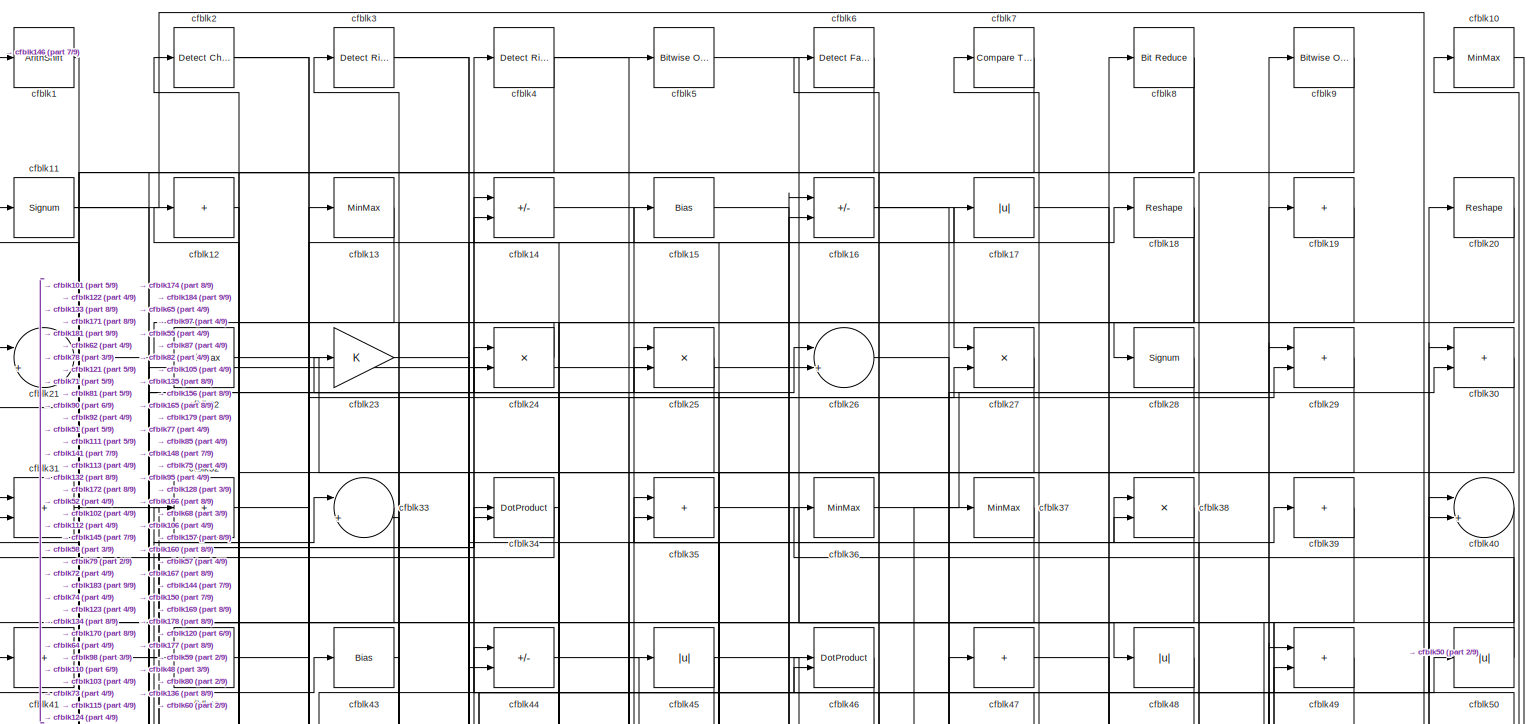
[diagram: root canvas - part 1/9, full width, top band]
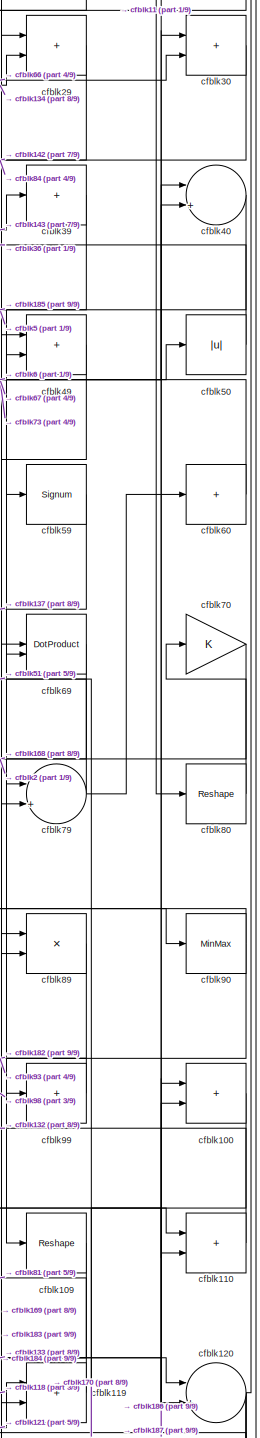
[diagram: root canvas - part 2/9, middle right region]
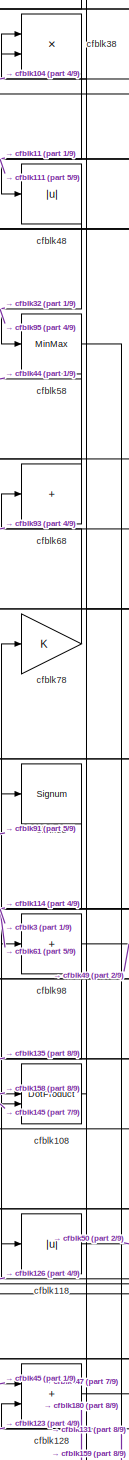
[diagram: root canvas - part 3/9, middle right region]
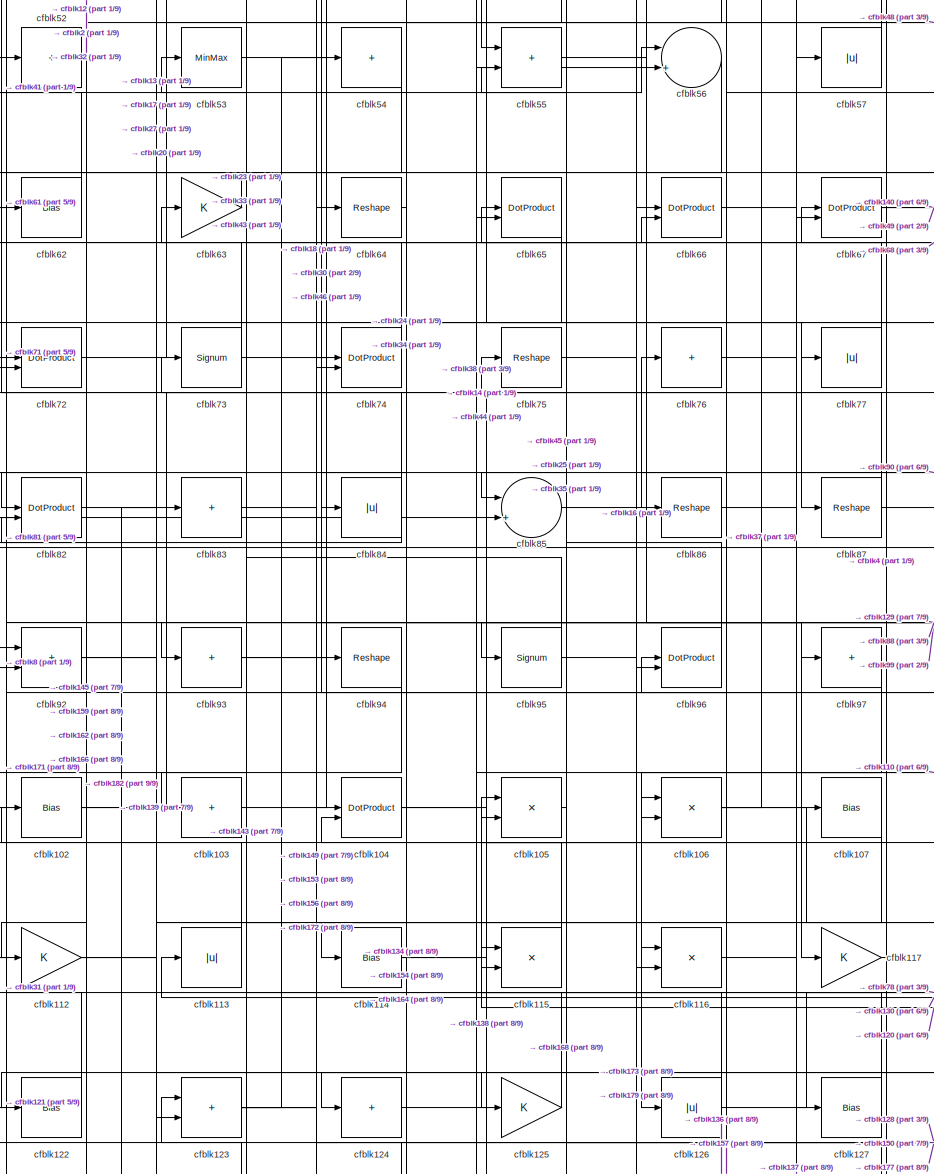
[diagram: root canvas - part 4/9, central region]
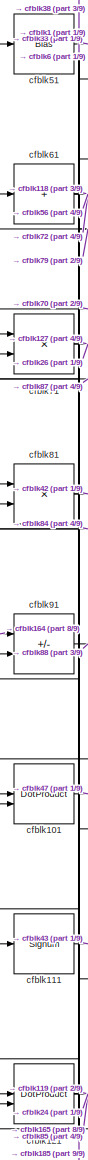
[diagram: root canvas - part 5/9, middle left region]
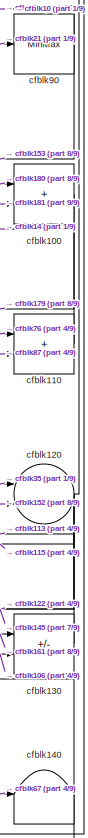
[diagram: root canvas - part 6/9, middle right region]
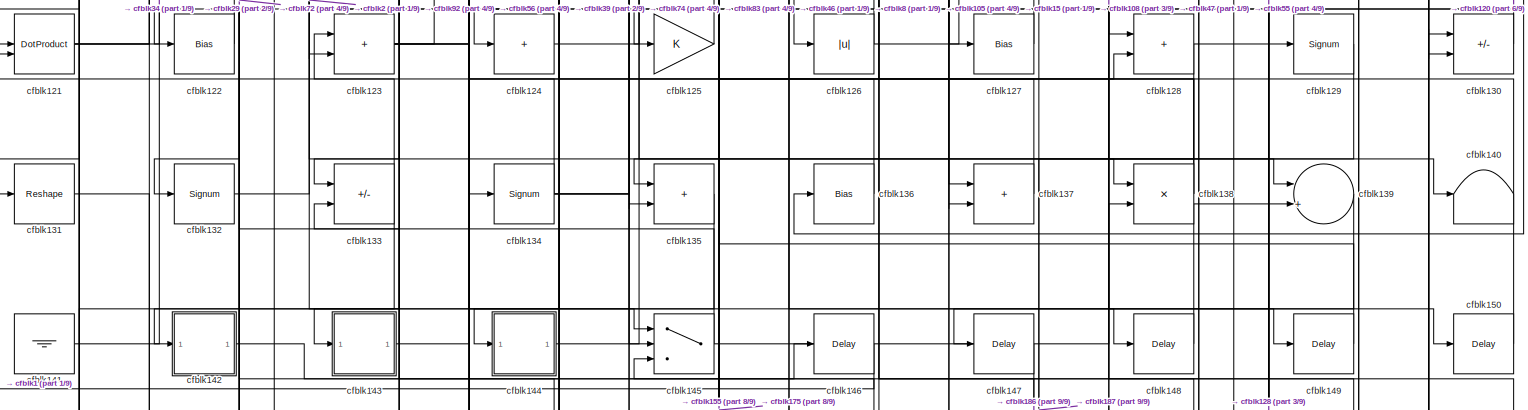
[diagram: root canvas - part 7/9, full width, bottom band]
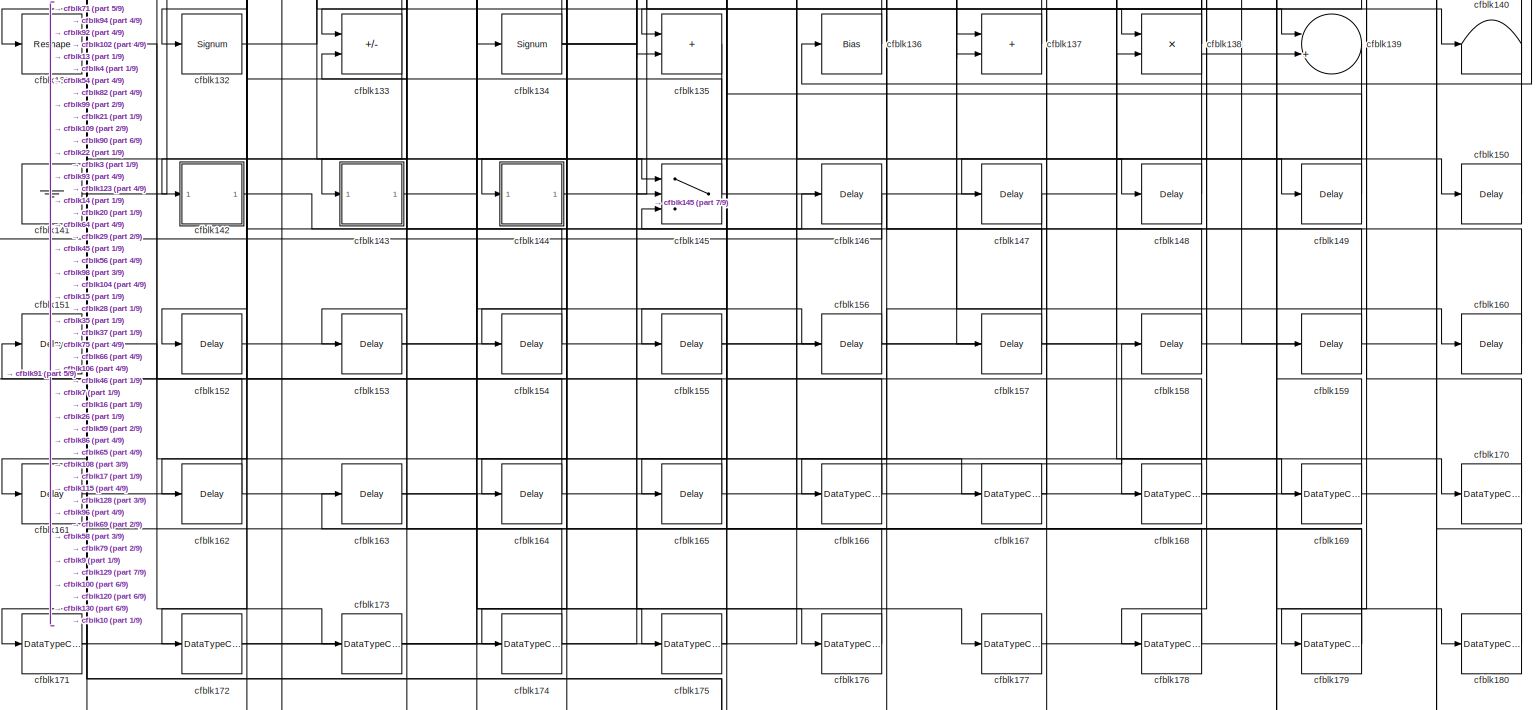
[diagram: root canvas - part 8/9, full width, bottom band]
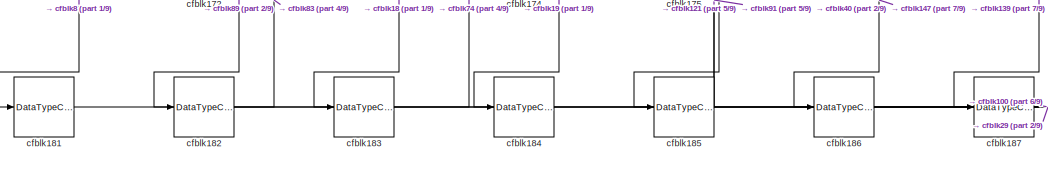
[diagram: root canvas - part 9/9, bottom center region]
MODEL slx_e2c86e003e8c
KIND model
CONFIG AbsTol = auto
CONFIG EnableMultiTasking = off
CONFIG FixedStep = auto
CONFIG MaxStep = auto
CONFIG MinStep = auto
CONFIG RelTol = 1e-3
CONFIG SampleTimeConstraint = Unconstrained
CONFIG SolverName = VariableStepAuto
CONFIG StartTime = 0.0
CONFIG StopTime = 10.0
BLOCK [ArithShift] cfblk1
  BitShiftNumber = 8
  InputPortMap = u0
BLOCK [MinMax] cfblk10
BLOCK [Sum] cfblk100
  IconShape = rectangular
BLOCK [DotProduct] cfblk101
  OutDataTypeStr = Inherit: Inherit via internal rule
BLOCK [Bias] cfblk102
  Bias = 0.0
  SaturateOnIntegerOverflow = off
BLOCK [Sum] cfblk103
  IconShape = rectangular
  Inputs = +
BLOCK [DotProduct] cfblk104
  OutDataTypeStr = Inherit: Inherit via internal rule
BLOCK [Product] cfblk105
  Inputs = */
  RndMeth = Zero
  SaturateOnIntegerOverflow = on
BLOCK [Product] cfblk106
  Inputs = */
  RndMeth = Zero
  SaturateOnIntegerOverflow = on
BLOCK [Bias] cfblk107
  Bias = 0.0
  SaturateOnIntegerOverflow = off
BLOCK [DotProduct] cfblk108
  OutDataTypeStr = Inherit: Inherit via internal rule
BLOCK [Reshape] cfblk109
BLOCK [Signum] cfblk11
BLOCK [Sum] cfblk110
  IconShape = rectangular
BLOCK [Signum] cfblk111
BLOCK [Gain] cfblk112
BLOCK [Abs] cfblk113
  SaturateOnIntegerOverflow = off
BLOCK [Bias] cfblk114
  Bias = 0.0
  SaturateOnIntegerOverflow = off
BLOCK [Product] cfblk115
  Inputs = */
  RndMeth = Zero
  SaturateOnIntegerOverflow = on
BLOCK [Product] cfblk116
  Inputs = */
  RndMeth = Zero
  SaturateOnIntegerOverflow = on
BLOCK [Gain] cfblk117
BLOCK [Abs] cfblk118
  SaturateOnIntegerOverflow = off
BLOCK [Sum] cfblk119
  IconShape = rectangular
BLOCK [Sum] cfblk12
  IconShape = rectangular
  Inputs = +
BLOCK [Sum] cfblk120
  Inputs = |++
BLOCK [DotProduct] cfblk121
  OutDataTypeStr = Inherit: Inherit via internal rule
BLOCK [Bias] cfblk122
  Bias = 0.0
  SaturateOnIntegerOverflow = off
BLOCK [Sum] cfblk123
  IconShape = rectangular
BLOCK [Sum] cfblk124
  IconShape = rectangular
  Inputs = +
BLOCK [Gain] cfblk125
BLOCK [Abs] cfblk126
  SaturateOnIntegerOverflow = off
BLOCK [Bias] cfblk127
  Bias = 0.0
  SaturateOnIntegerOverflow = off
BLOCK [Sum] cfblk128
  IconShape = rectangular
BLOCK [Signum] cfblk129
BLOCK [MinMax] cfblk13
BLOCK [Sum] cfblk130
  IconShape = rectangular
  Inputs = +-
BLOCK [Reshape] cfblk131
BLOCK [Signum] cfblk132
BLOCK [Sum] cfblk133
  IconShape = rectangular
  Inputs = +-
BLOCK [Signum] cfblk134
BLOCK [Sum] cfblk135
  IconShape = rectangular
BLOCK [Bias] cfblk136
  Bias = 0.0
  SaturateOnIntegerOverflow = off
BLOCK [Sum] cfblk137
  IconShape = rectangular
BLOCK [Product] cfblk138
  Inputs = */
  RndMeth = Zero
  SaturateOnIntegerOverflow = on
BLOCK [Sum] cfblk139
  Inputs = |++
BLOCK [Sum] cfblk14
  IconShape = rectangular
  Inputs = +-
BLOCK [Terminator] cfblk140
BLOCK [Ground] cfblk141
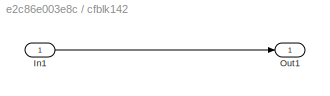
BLOCK [SubSystem] cfblk142
  LibrarySourceBlock = hdlsllib/Ports &\nSubsystems/Subsystem
BLOCK [Inport] cfblk142/In1
BLOCK [Outport] cfblk142/Out1
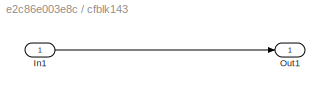
BLOCK [SubSystem] cfblk143
  LibrarySourceBlock = hdlsllib/Ports &\nSubsystems/Subsystem
BLOCK [Inport] cfblk143/In1
BLOCK [Outport] cfblk143/Out1
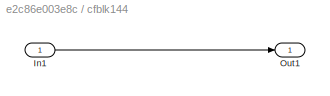
BLOCK [SubSystem] cfblk144
  LibrarySourceBlock = hdlsllib/Ports &\nSubsystems/Subsystem
BLOCK [Inport] cfblk144/In1
BLOCK [Outport] cfblk144/Out1
BLOCK [Switch] cfblk145
  InputSameDT = off
  SaturateOnIntegerOverflow = off
BLOCK [Delay] cfblk146
  InputPortMap = u0
  SampleTime = 1
BLOCK [Delay] cfblk147
  InputPortMap = u0
  SampleTime = 1
BLOCK [Delay] cfblk148
  InputPortMap = u0
  SampleTime = 1
BLOCK [Delay] cfblk149
  InputPortMap = u0
  SampleTime = 1
BLOCK [Bias] cfblk15
  Bias = 0.0
  SaturateOnIntegerOverflow = off
BLOCK [Delay] cfblk150
  InputPortMap = u0
  SampleTime = 1
BLOCK [Delay] cfblk151
  InputPortMap = u0
  SampleTime = 1
BLOCK [Delay] cfblk152
  InputPortMap = u0
  SampleTime = 1
BLOCK [Delay] cfblk153
  InputPortMap = u0
  SampleTime = 1
BLOCK [Delay] cfblk154
  InputPortMap = u0
  SampleTime = 1
BLOCK [Delay] cfblk155
  InputPortMap = u0
  SampleTime = 1
BLOCK [Delay] cfblk156
  InputPortMap = u0
  SampleTime = 1
BLOCK [Delay] cfblk157
  InputPortMap = u0
  SampleTime = 1
BLOCK [Delay] cfblk158
  InputPortMap = u0
  SampleTime = 1
BLOCK [Delay] cfblk159
  InputPortMap = u0
  SampleTime = 1
BLOCK [Sum] cfblk16
  IconShape = rectangular
  Inputs = +-
BLOCK [Delay] cfblk160
  InputPortMap = u0
  SampleTime = 1
BLOCK [Delay] cfblk161
  InputPortMap = u0
  SampleTime = 1
BLOCK [Delay] cfblk162
  InputPortMap = u0
  SampleTime = 1
BLOCK [Delay] cfblk163
  InputPortMap = u0
  SampleTime = 1
BLOCK [Delay] cfblk164
  InputPortMap = u0
  SampleTime = 1
BLOCK [Delay] cfblk165
  InputPortMap = u0
  SampleTime = 1
BLOCK [DataTypeConversion] cfblk166
  RndMeth = Floor
  SaturateOnIntegerOverflow = off
BLOCK [DataTypeConversion] cfblk167
  OutDataTypeStr = uint8
  RndMeth = Floor
  SaturateOnIntegerOverflow = off
BLOCK [DataTypeConversion] cfblk168
  RndMeth = Floor
  SaturateOnIntegerOverflow = off
BLOCK [DataTypeConversion] cfblk169
  OutDataTypeStr = uint8
  RndMeth = Floor
  SaturateOnIntegerOverflow = off
BLOCK [Abs] cfblk17
  SaturateOnIntegerOverflow = off
BLOCK [DataTypeConversion] cfblk170
  OutDataTypeStr = uint8
  RndMeth = Floor
  SaturateOnIntegerOverflow = off
BLOCK [DataTypeConversion] cfblk171
  RndMeth = Floor
  SaturateOnIntegerOverflow = off
BLOCK [DataTypeConversion] cfblk172
  OutDataTypeStr = uint8
  RndMeth = Floor
  SaturateOnIntegerOverflow = off
BLOCK [DataTypeConversion] cfblk173
  OutDataTypeStr = uint8
  RndMeth = Floor
  SaturateOnIntegerOverflow = off
BLOCK [DataTypeConversion] cfblk174
  OutDataTypeStr = uint8
  RndMeth = Floor
  SaturateOnIntegerOverflow = off
BLOCK [DataTypeConversion] cfblk175
  OutDataTypeStr = uint8
  RndMeth = Floor
  SaturateOnIntegerOverflow = off
BLOCK [DataTypeConversion] cfblk176
  OutDataTypeStr = uint8
  RndMeth = Floor
  SaturateOnIntegerOverflow = off
BLOCK [DataTypeConversion] cfblk177
  OutDataTypeStr = boolean
  RndMeth = Floor
  SaturateOnIntegerOverflow = off
BLOCK [DataTypeConversion] cfblk178
  OutDataTypeStr = uint8
  RndMeth = Floor
  SaturateOnIntegerOverflow = off
BLOCK [DataTypeConversion] cfblk179
  RndMeth = Floor
  SaturateOnIntegerOverflow = off
BLOCK [Reshape] cfblk18
BLOCK [DataTypeConversion] cfblk180
  OutDataTypeStr = uint8
  RndMeth = Floor
  SaturateOnIntegerOverflow = off
BLOCK [DataTypeConversion] cfblk181
  OutDataTypeStr = uint8
  RndMeth = Floor
  SaturateOnIntegerOverflow = off
BLOCK [DataTypeConversion] cfblk182
  RndMeth = Floor
  SaturateOnIntegerOverflow = off
BLOCK [DataTypeConversion] cfblk183
  OutDataTypeStr = uint8
  RndMeth = Floor
  SaturateOnIntegerOverflow = off
BLOCK [DataTypeConversion] cfblk184
  OutDataTypeStr = uint8
  RndMeth = Floor
  SaturateOnIntegerOverflow = off
BLOCK [DataTypeConversion] cfblk185
  RndMeth = Floor
  SaturateOnIntegerOverflow = off
BLOCK [DataTypeConversion] cfblk186
  OutDataTypeStr = uint8
  RndMeth = Floor
  SaturateOnIntegerOverflow = off
BLOCK [DataTypeConversion] cfblk187
  OutDataTypeStr = uint8
  RndMeth = Floor
  SaturateOnIntegerOverflow = off
BLOCK [Sum] cfblk19
  IconShape = rectangular
  Inputs = +
BLOCK [Reference] cfblk2  REF=simulink/Logic and Bit
Operations/Detect
Change
  LibrarySourceBlock = hdlsllib/Logic and Bit\nOperations/Detect\nChange
  SourceBlock = simulink/Logic and Bit\nOperations/Detect\nChange
  SourceType = Detect Change
BLOCK [Reshape] cfblk20
BLOCK [Sum] cfblk21
  Inputs = |++
BLOCK [MinMax] cfblk22
BLOCK [Gain] cfblk23
BLOCK [Product] cfblk24
  Inputs = */
  RndMeth = Zero
  SaturateOnIntegerOverflow = on
BLOCK [Product] cfblk25
  Inputs = */
  RndMeth = Zero
  SaturateOnIntegerOverflow = on
BLOCK [Sum] cfblk26
  Inputs = |++
BLOCK [Product] cfblk27
  Inputs = */
  RndMeth = Zero
  SaturateOnIntegerOverflow = on
BLOCK [Signum] cfblk28
BLOCK [Sum] cfblk29
  IconShape = rectangular
BLOCK [Reference] cfblk3  REF=hdlsllib/Logic and Bit
Operations/Detect Rise
Positive
  SourceBlock = hdlsllib/Logic and Bit\nOperations/Detect Rise\nPositive
  SourceType = Detect Rise Positive
BLOCK [Sum] cfblk30
  IconShape = rectangular
BLOCK [Sum] cfblk31
  IconShape = rectangular
BLOCK [Sum] cfblk32
  IconShape = rectangular
  Inputs = +
BLOCK [Sum] cfblk33
  Inputs = |++
BLOCK [DotProduct] cfblk34
  OutDataTypeStr = Inherit: Inherit via internal rule
BLOCK [Sum] cfblk35
  IconShape = rectangular
BLOCK [MinMax] cfblk36
BLOCK [MinMax] cfblk37
BLOCK [Product] cfblk38
  Inputs = */
  RndMeth = Zero
  SaturateOnIntegerOverflow = on
BLOCK [Sum] cfblk39
  IconShape = rectangular
  Inputs = +
BLOCK [Reference] cfblk4  REF=hdlsllib/Logic and Bit
Operations/Detect Rise
Nonnegative
  SourceBlock = hdlsllib/Logic and Bit\nOperations/Detect Rise\nNonnegative
  SourceType = Detect Rise Nonnegative
BLOCK [Sum] cfblk40
  Inputs = |++
BLOCK [Sum] cfblk41
  IconShape = rectangular
  Inputs = +
BLOCK [Sum] cfblk42
  IconShape = rectangular
  Inputs = +
BLOCK [Bias] cfblk43
  Bias = 0.0
  SaturateOnIntegerOverflow = off
BLOCK [Sum] cfblk44
  IconShape = rectangular
  Inputs = +-
BLOCK [Abs] cfblk45
  SaturateOnIntegerOverflow = off
BLOCK [DotProduct] cfblk46
  OutDataTypeStr = Inherit: Inherit via internal rule
BLOCK [Sum] cfblk47
  IconShape = rectangular
  Inputs = +
BLOCK [Abs] cfblk48
  SaturateOnIntegerOverflow = off
BLOCK [Sum] cfblk49
  IconShape = rectangular
BLOCK [Reference] cfblk5  REF=simulink/Logic and Bit
Operations/Bitwise
Operator
  LibrarySourceBlock = hdlsllib/Logic and Bit\nOperations/Bitwise\nOperator
  SourceBlock = simulink/Logic and Bit\nOperations/Bitwise\nOperator
  SourceType = Bitwise Operator
BLOCK [Abs] cfblk50
  SaturateOnIntegerOverflow = off
BLOCK [Bias] cfblk51
  Bias = 0.0
  SaturateOnIntegerOverflow = off
BLOCK [Sum] cfblk52
  IconShape = rectangular
  Inputs = +
BLOCK [MinMax] cfblk53
BLOCK [Sum] cfblk54
  IconShape = rectangular
  Inputs = +
BLOCK [Sum] cfblk55
  IconShape = rectangular
BLOCK [Sum] cfblk56
  Inputs = |++
BLOCK [Abs] cfblk57
  SaturateOnIntegerOverflow = off
BLOCK [MinMax] cfblk58
BLOCK [Signum] cfblk59
BLOCK [Reference] cfblk6  REF=hdlsllib/Logic and Bit
Operations/Detect Fall
Nonpositive
  SourceBlock = hdlsllib/Logic and Bit\nOperations/Detect Fall\nNonpositive
  SourceType = Detect Fall Nonpositive
BLOCK [Sum] cfblk60
  IconShape = rectangular
  Inputs = +
BLOCK [Sum] cfblk61
  IconShape = rectangular
  Inputs = +
BLOCK [Bias] cfblk62
  Bias = 0.0
  SaturateOnIntegerOverflow = off
BLOCK [Gain] cfblk63
BLOCK [Reshape] cfblk64
BLOCK [DotProduct] cfblk65
  OutDataTypeStr = Inherit: Inherit via internal rule
BLOCK [DotProduct] cfblk66
  OutDataTypeStr = Inherit: Inherit via internal rule
BLOCK [DotProduct] cfblk67
  OutDataTypeStr = Inherit: Inherit via internal rule
BLOCK [Sum] cfblk68
  IconShape = rectangular
  Inputs = +
BLOCK [DotProduct] cfblk69
  OutDataTypeStr = Inherit: Inherit via internal rule
BLOCK [Reference] cfblk7  REF=hdlsllib/Logic and Bit
Operations/Compare
To Zero
  SourceBlock = hdlsllib/Logic and Bit\nOperations/Compare\nTo Zero
  SourceType = Compare To Zero
BLOCK [Gain] cfblk70
BLOCK [Product] cfblk71
  Inputs = */
  RndMeth = Zero
  SaturateOnIntegerOverflow = on
BLOCK [DotProduct] cfblk72
  OutDataTypeStr = Inherit: Inherit via internal rule
BLOCK [Signum] cfblk73
BLOCK [DotProduct] cfblk74
  OutDataTypeStr = Inherit: Inherit via internal rule
BLOCK [Reshape] cfblk75
BLOCK [Sum] cfblk76
  IconShape = rectangular
  Inputs = +
BLOCK [Abs] cfblk77
  SaturateOnIntegerOverflow = off
BLOCK [Gain] cfblk78
BLOCK [Sum] cfblk79
  Inputs = |++
BLOCK [Reference] cfblk8  REF=hdlsllib/Logic and Bit
Operations/Bit Reduce
  SourceBlock = hdlsllib/Logic and Bit\nOperations/Bit Reduce
  SourceType = Bit Reduce
BLOCK [Reshape] cfblk80
BLOCK [Product] cfblk81
  Inputs = */
  RndMeth = Zero
  SaturateOnIntegerOverflow = on
BLOCK [DotProduct] cfblk82
  OutDataTypeStr = Inherit: Inherit via internal rule
BLOCK [Sum] cfblk83
  IconShape = rectangular
  Inputs = +
BLOCK [Abs] cfblk84
  SaturateOnIntegerOverflow = off
BLOCK [Sum] cfblk85
  Inputs = |++
BLOCK [Reshape] cfblk86
BLOCK [Reshape] cfblk87
BLOCK [Signum] cfblk88
BLOCK [Product] cfblk89
  Inputs = */
  RndMeth = Zero
  SaturateOnIntegerOverflow = on
BLOCK [Reference] cfblk9  REF=simulink/Logic and Bit
Operations/Bitwise
Operator
  LibrarySourceBlock = hdlsllib/Logic and Bit\nOperations/Bitwise\nOperator
  SourceBlock = simulink/Logic and Bit\nOperations/Bitwise\nOperator
  SourceType = Bitwise Operator
BLOCK [MinMax] cfblk90
BLOCK [Sum] cfblk91
  IconShape = rectangular
  Inputs = +-
BLOCK [Sum] cfblk92
  IconShape = rectangular
BLOCK [Sum] cfblk93
  IconShape = rectangular
  Inputs = +
BLOCK [Reshape] cfblk94
BLOCK [Signum] cfblk95
BLOCK [DotProduct] cfblk96
  OutDataTypeStr = Inherit: Inherit via internal rule
BLOCK [Sum] cfblk97
  IconShape = rectangular
  Inputs = +
BLOCK [Sum] cfblk98
  IconShape = rectangular
  Inputs = +
BLOCK [Sum] cfblk99
  IconShape = rectangular
  Inputs = +
LINE cfblk100:1 -> cfblk179:1
LINE cfblk101:1 -> cfblk47:1
NET cfblk102:1 -> cfblk27:2, cfblk77:1
LINE cfblk103:1 -> cfblk46:1
NET cfblk104:1 -> cfblk138:1, cfblk38:2
LINE cfblk105:1 -> cfblk35:1
NET cfblk106:1 -> cfblk107:1, cfblk130:2, cfblk37:1
LINE cfblk107:1 -> cfblk123:2
LINE cfblk108:1 -> cfblk38:1
LINE cfblk109:1 -> cfblk133:1
LINE cfblk10:1 -> cfblk136:1
LINE cfblk110:1 -> cfblk14:1
LINE cfblk111:1 -> cfblk43:1
NET cfblk112:1 -> cfblk116:1, cfblk13:1
LINE cfblk113:1 -> cfblk2:1
NET cfblk114:1 -> cfblk57:1, cfblk66:2
LINE cfblk115:1 -> cfblk24:1
LINE cfblk116:1 -> cfblk67:2
LINE cfblk117:1 -> cfblk67:1
LINE cfblk118:1 -> cfblk50:1
LINE cfblk119:1 -> cfblk81:1
NET cfblk11:1 -> cfblk48:1, cfblk80:1
NET cfblk120:1 -> cfblk10:1, cfblk115:2, cfblk122:1, cfblk145:2
NET cfblk121:1 -> cfblk119:1, cfblk24:2, cfblk85:2
LINE cfblk122:1 -> cfblk31:1
NET cfblk123:1 -> cfblk128:2, cfblk177:1, cfblk18:1, cfblk53:1, cfblk54:1
LINE cfblk124:1 -> cfblk106:1
LINE cfblk125:1 -> cfblk73:1
NET cfblk126:1 -> cfblk55:2, cfblk78:1
LINE cfblk127:1 -> cfblk105:1
NET cfblk128:1 -> cfblk147:1, cfblk180:1
LINE cfblk129:1 -> cfblk155:1
LINE cfblk12:1 -> cfblk112:1
LINE cfblk130:1 -> cfblk113:1
LINE cfblk131:1 -> cfblk167:1
LINE cfblk132:1 -> cfblk99:1
NET cfblk133:1 -> cfblk152:1, cfblk21:2
NET cfblk134:1 -> cfblk123:1, cfblk176:1, cfblk29:2, cfblk56:2
LINE cfblk135:1 -> cfblk161:1
LINE cfblk136:1 -> cfblk104:2
LINE cfblk137:1 -> cfblk65:1
NET cfblk138:1 -> cfblk115:1, cfblk96:1
LINE cfblk139:1 -> cfblk187:1
LINE cfblk13:1 -> cfblk132:1
LINE cfblk141:1 -> cfblk34:1
LINE cfblk142/In1:1 -> cfblk142/Out1:1
LINE cfblk142:1 -> cfblk146:1
LINE cfblk143/In1:1 -> cfblk143/Out1:1
LINE cfblk143:1 -> cfblk39:1
LINE cfblk144/In1:1 -> cfblk144/Out1:1
LINE cfblk144:1 -> cfblk8:1
NET cfblk145:1 -> cfblk108:2, cfblk72:1
LINE cfblk146:1 -> cfblk1:1
LINE cfblk147:1 -> cfblk186:1
LINE cfblk148:1 -> cfblk139:2
LINE cfblk149:1 -> cfblk105:2
LINE cfblk14:1 -> cfblk55:1
LINE cfblk150:1 -> cfblk74:1
LINE cfblk151:1 -> cfblk173:1
LINE cfblk152:1 -> cfblk120:2
LINE cfblk153:1 -> cfblk104:1
LINE cfblk154:1 -> cfblk133:2
LINE cfblk155:1 -> cfblk138:2
LINE cfblk156:1 -> cfblk35:2
LINE cfblk157:1 -> cfblk106:2
LINE cfblk158:1 -> cfblk108:1
LINE cfblk159:1 -> cfblk82:2
LINE cfblk15:1 -> cfblk148:1
LINE cfblk160:1 -> cfblk46:2
LINE cfblk161:1 -> cfblk130:1
LINE cfblk162:1 -> cfblk92:1
LINE cfblk163:1 -> cfblk175:1
LINE cfblk164:1 -> cfblk91:1
LINE cfblk165:1 -> cfblk71:2
NET cfblk166:1 -> cfblk102:1, cfblk158:1
LINE cfblk167:1 -> cfblk7:1
NET cfblk168:1 -> cfblk75:1, cfblk79:2
LINE cfblk169:1 -> cfblk69:1
NET cfblk16:1 -> cfblk160:1, cfblk27:1
LINE cfblk170:1 -> cfblk69:2
NET cfblk171:1 -> cfblk21:1, cfblk45:1
LINE cfblk172:1 -> cfblk94:1
LINE cfblk173:1 -> cfblk96:2
LINE cfblk174:1 -> cfblk151:1
LINE cfblk175:1 -> cfblk145:3
LINE cfblk176:1 -> cfblk163:1
LINE cfblk177:1 -> cfblk9:1
LINE cfblk178:1 -> cfblk3:1
NET cfblk179:1 -> cfblk14:2, cfblk15:1, cfblk66:1
LINE cfblk17:1 -> cfblk169:1
LINE cfblk180:1 -> cfblk100:1
LINE cfblk181:1 -> cfblk100:2
NET cfblk182:1 -> cfblk74:2, cfblk83:1
LINE cfblk183:1 -> cfblk89:1
LINE cfblk184:1 -> cfblk89:2
NET cfblk185:1 -> cfblk121:2, cfblk29:1, cfblk91:2
LINE cfblk186:1 -> cfblk40:1
LINE cfblk187:1 -> cfblk40:2
NET cfblk18:1 -> cfblk183:1, cfblk28:1
LINE cfblk19:1 -> cfblk184:1
LINE cfblk1:1 -> cfblk71:1
LINE cfblk20:1 -> cfblk174:1
LINE cfblk21:1 -> cfblk90:1
LINE cfblk22:1 -> cfblk134:1
LINE cfblk23:1 -> cfblk64:1
LINE cfblk24:1 -> cfblk22:1
LINE cfblk25:1 -> cfblk44:2
LINE cfblk26:1 -> cfblk157:1
LINE cfblk27:1 -> cfblk85:1
LINE cfblk28:1 -> cfblk135:1
LINE cfblk29:1 -> cfblk142:1
NET cfblk2:1 -> cfblk145:1, cfblk79:1
LINE cfblk30:1 -> cfblk84:1
LINE cfblk31:1 -> cfblk65:2
LINE cfblk32:1 -> cfblk58:1
LINE cfblk33:1 -> cfblk101:2
NET cfblk34:1 -> cfblk124:1, cfblk31:2
LINE cfblk35:1 -> cfblk120:1
LINE cfblk36:1 -> cfblk19:1
LINE cfblk37:1 -> cfblk165:1
LINE cfblk38:1 -> cfblk111:1
LINE cfblk39:1 -> cfblk109:1
NET cfblk3:1 -> cfblk170:1, cfblk98:1
LINE cfblk40:1 -> cfblk185:1
LINE cfblk41:1 -> cfblk34:2
LINE cfblk42:1 -> cfblk25:2
LINE cfblk43:1 -> cfblk103:1
LINE cfblk44:1 -> cfblk87:1
NET cfblk45:1 -> cfblk128:1, cfblk82:1
LINE cfblk46:1 -> cfblk144:1
LINE cfblk47:1 -> cfblk150:1
LINE cfblk48:1 -> cfblk95:1
LINE cfblk49:1 -> cfblk119:2
NET cfblk4:1 -> cfblk172:1, cfblk5:1, cfblk97:1
LINE cfblk50:1 -> cfblk36:1
LINE cfblk51:1 -> cfblk33:1
LINE cfblk52:1 -> cfblk12:1
LINE cfblk53:1 -> cfblk117:1
LINE cfblk54:1 -> cfblk162:1
LINE cfblk55:1 -> cfblk129:1
LINE cfblk56:1 -> cfblk143:1
LINE cfblk57:1 -> cfblk4:1
NET cfblk58:1 -> cfblk131:1, cfblk159:1
LINE cfblk59:1 -> cfblk137:2
LINE cfblk5:1 -> cfblk59:1
LINE cfblk60:1 -> cfblk6:1
NET cfblk61:1 -> cfblk118:1, cfblk56:1, cfblk72:2
LINE cfblk62:1 -> cfblk41:1
LINE cfblk63:1 -> cfblk62:1
LINE cfblk64:1 -> cfblk164:1
LINE cfblk65:1 -> cfblk154:1
LINE cfblk66:1 -> cfblk30:2
NET cfblk67:1 -> cfblk140:1, cfblk49:2
LINE cfblk68:1 -> cfblk44:1
LINE cfblk69:1 -> cfblk168:1
LINE cfblk6:1 -> cfblk101:1
LINE cfblk70:1 -> cfblk121:1
NET cfblk71:1 -> cfblk127:1, cfblk26:1
LINE cfblk72:1 -> cfblk20:1
NET cfblk73:1 -> cfblk30:1, cfblk32:1
LINE cfblk74:1 -> cfblk33:2
LINE cfblk75:1 -> cfblk16:2
LINE cfblk76:1 -> cfblk110:1
LINE cfblk77:1 -> cfblk25:1
LINE cfblk78:1 -> cfblk11:1
NET cfblk79:1 -> cfblk51:1, cfblk60:1
LINE cfblk7:1 -> cfblk166:1
LINE cfblk80:1 -> cfblk70:1
NET cfblk81:1 -> cfblk26:2, cfblk42:1
LINE cfblk82:1 -> cfblk125:1
LINE cfblk83:1 -> cfblk149:1
NET cfblk84:1 -> cfblk52:1, cfblk81:2
LINE cfblk85:1 -> cfblk76:1
LINE cfblk86:1 -> cfblk137:1
NET cfblk87:1 -> cfblk110:2, cfblk61:1
LINE cfblk88:1 -> cfblk114:1
LINE cfblk89:1 -> cfblk182:1
NET cfblk8:1 -> cfblk181:1, cfblk92:2
NET cfblk90:1 -> cfblk153:1, cfblk86:1
LINE cfblk91:1 -> cfblk88:1
NET cfblk92:1 -> cfblk139:1, cfblk17:1
NET cfblk93:1 -> cfblk156:1, cfblk68:1
LINE cfblk94:1 -> cfblk171:1
NET cfblk95:1 -> cfblk16:1, cfblk23:1
LINE cfblk96:1 -> cfblk63:1
NET cfblk97:1 -> cfblk116:2, cfblk126:1
NET cfblk98:1 -> cfblk135:2, cfblk49:1
LINE cfblk99:1 -> cfblk93:1
LINE cfblk9:1 -> cfblk178:1
note: NET lines group one-source signal fan-out (src -> all destinations, sorted); 1:1 wires keep LINE
